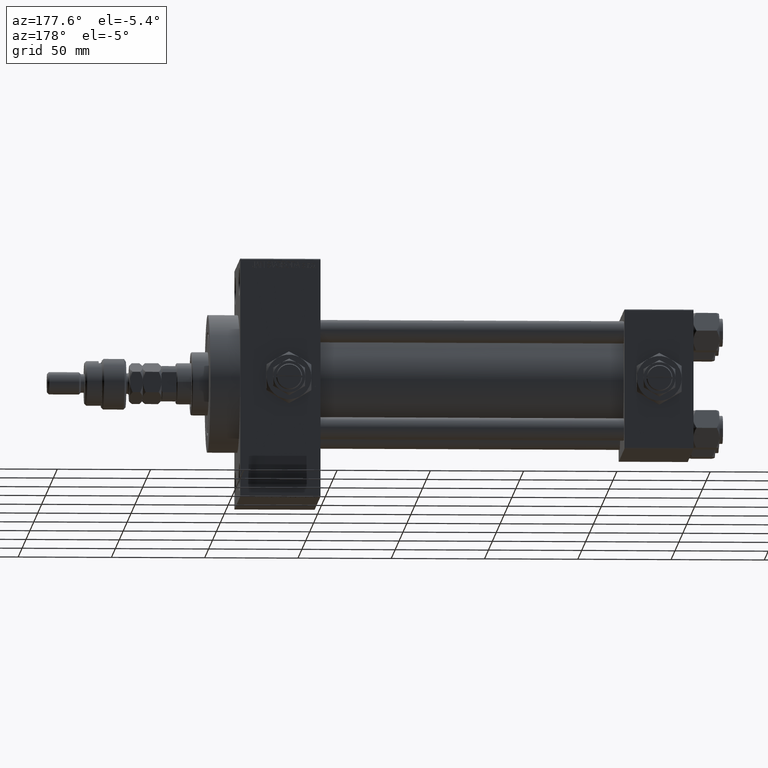
[diagram: clean part render]
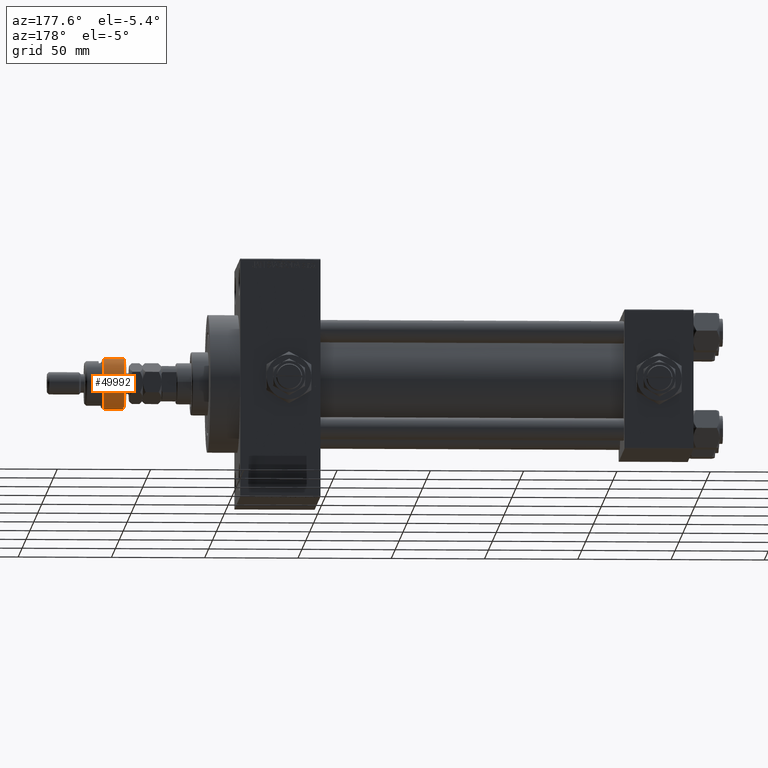
[diagram: same view with one face highlighted and labeled with its STEP entity id]
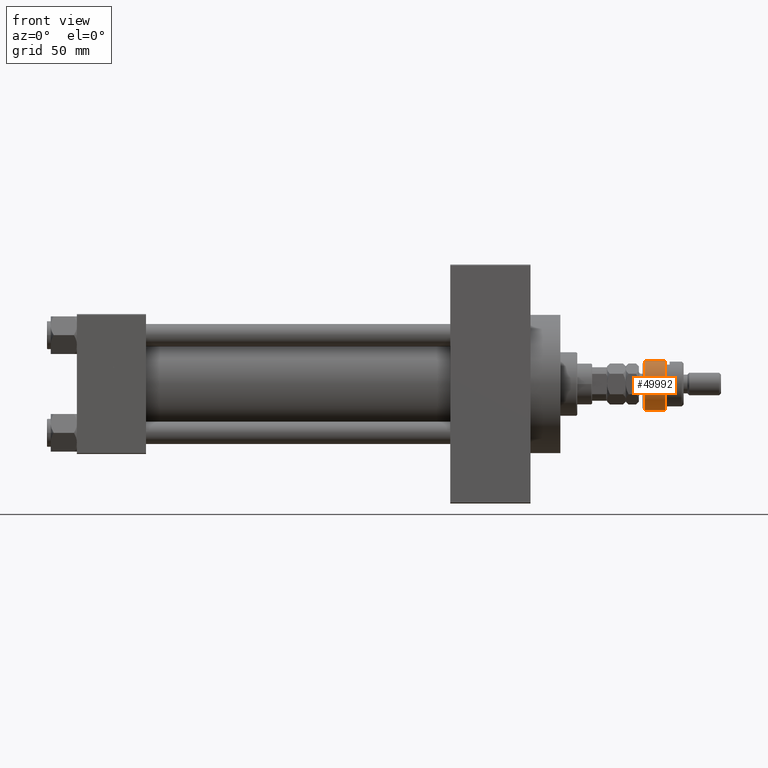
[diagram: same view with one face highlighted and labeled with its STEP entity id]
A machine part, auxiliary view. The second image highlights one B-rep face of the part: STEP entity #49992.
A second angle (front view) of the same face is appended — the face is thin or edge-on in the first view.
In plain terms, the highlighted cylindrical surface (edge-blend (fillet) strip) has radius 14 mm, axis along (-1, -0, 0).
Its self-contained STEP definition (entity closure, byte-faithful):
#356 = ORIENTED_EDGE ( 'NONE', *, *, #7010, .T. ) ;
#536 = EDGE_CURVE ( 'NONE', #14144, #27262, #51732, .T. ) ;
#3102 = EDGE_CURVE ( 'NONE', #32166, #40225, #21530, .T. ) ;
#3386 = CARTESIAN_POINT ( 'NONE',  ( 0.000000000000000000, 0.000000000000000000, 1.000000000000018208 ) ) ;
#3675 = EDGE_CURVE ( 'NONE', #7626, #14144, #35916, .T. ) ;
#4317 = DIRECTION ( 'NONE',  ( -0.000000000000000000, -0.000000000000000000, 1.000000000000000000 ) ) ;
#6844 = DIRECTION ( 'NONE',  ( -0.000000000000000000, -0.000000000000000000, 1.000000000000000000 ) ) ;
#7010 = EDGE_CURVE ( 'NONE', #27262, #32166, #11567, .T. ) ;
#7626 = VERTEX_POINT ( 'NONE', #35823 ) ;
#9298 = VECTOR ( 'NONE', #34826, 1000.000000000000000 ) ;
#9599 = CARTESIAN_POINT ( 'NONE',  ( 0.000000000000000000, 0.000000000000000000, 13.00000000000000000 ) ) ;
#10541 = AXIS2_PLACEMENT_3D ( 'NONE', #3386, #6844, #46776 ) ;
#11567 = CIRCLE ( 'NONE', #24234, 14.00000000000000000 ) ;
#12064 = CARTESIAN_POINT ( 'NONE',  ( 14.00000000000000000, 0.000000000000000000, 1.000000000000018208 ) ) ;
#12260 = CARTESIAN_POINT ( 'NONE',  ( 0.000000000000000000, 0.000000000000000000, 1.000000000000018208 ) ) ;
#14031 = CARTESIAN_POINT ( 'NONE',  ( -12.64911064067351809, -5.999999999999999112, 12.00000000000002842 ) ) ;
#14144 = VERTEX_POINT ( 'NONE', #14031 ) ;
#14864 = CYLINDRICAL_SURFACE ( 'NONE', #41557, 14.00000000000000000 ) ;
#15501 = CARTESIAN_POINT ( 'NONE',  ( -12.64911064067351809, -5.999999999999999112, 14.50000000000000000 ) ) ;
#16235 = EDGE_LOOP ( 'NONE', ( #33910, #32303, #41014, #356, #31425 ) ) ;
#16957 = EDGE_CURVE ( 'NONE', #7626, #40225, #39507, .T. ) ;
#21295 = CARTESIAN_POINT ( 'NONE',  ( 0.000000000000000000, 0.000000000000000000, 12.00000000000002842 ) ) ;
#21530 = CIRCLE ( 'NONE', #10541, 14.00000000000000000 ) ;
#22817 = FACE_OUTER_BOUND ( 'NONE', #16235, .T. ) ;
#23161 = CARTESIAN_POINT ( 'NONE',  ( -12.64911064067351809, -5.999999999999999112, 1.000000000000021760 ) ) ;
#24234 = AXIS2_PLACEMENT_3D ( 'NONE', #12260, #4317, #24692 ) ;
#24692 = DIRECTION ( 'NONE',  ( 1.000000000000000000, 0.000000000000000000, 0.000000000000000000 ) ) ;
#25733 = DIRECTION ( 'NONE',  ( -0.000000000000000000, -0.000000000000000000, -1.000000000000000000 ) ) ;
#27262 = VERTEX_POINT ( 'NONE', #23161 ) ;
#31425 = ORIENTED_EDGE ( 'NONE', *, *, #3102, .T. ) ;
#32166 = VERTEX_POINT ( 'NONE', #12064 ) ;
#32303 = ORIENTED_EDGE ( 'NONE', *, *, #3675, .T. ) ;
#33910 = ORIENTED_EDGE ( 'NONE', *, *, #16957, .F. ) ;
#34826 = DIRECTION ( 'NONE',  ( -0.000000000000000000, -0.000000000000000000, -1.000000000000000000 ) ) ;
#35823 = CARTESIAN_POINT ( 'NONE',  ( -12.64911064067351809, 6.000000000000000000, 12.00000000000002842 ) ) ;
#35916 = CIRCLE ( 'NONE', #36805, 14.00000000000000000 ) ;
#36805 = AXIS2_PLACEMENT_3D ( 'NONE', #21295, #37670, #45353 ) ;
#37670 = DIRECTION ( 'NONE',  ( 0.000000000000000000, 0.000000000000000000, -1.000000000000000000 ) ) ;
#38732 = DIRECTION ( 'NONE',  ( -0.000000000000000000, -0.000000000000000000, -1.000000000000000000 ) ) ;
#39507 = LINE ( 'NONE', #42975, #43967 ) ;
#40225 = VERTEX_POINT ( 'NONE', #45293 ) ;
#41014 = ORIENTED_EDGE ( 'NONE', *, *, #536, .T. ) ;
#41557 = AXIS2_PLACEMENT_3D ( 'NONE', #9599, #25733, #42120 ) ;
#42120 = DIRECTION ( 'NONE',  ( -1.000000000000000000, 0.000000000000000000, 0.000000000000000000 ) ) ;
#42975 = CARTESIAN_POINT ( 'NONE',  ( -12.64911064067351809, 6.000000000000000000, 14.50000000000000000 ) ) ;
#43967 = VECTOR ( 'NONE', #38732, 1000.000000000000000 ) ;
#45293 = CARTESIAN_POINT ( 'NONE',  ( -12.64911064067351809, 6.000000000000000000, 1.000000000000021760 ) ) ;
#45353 = DIRECTION ( 'NONE',  ( 1.000000000000000000, 0.000000000000000000, 0.000000000000000000 ) ) ;
#46776 = DIRECTION ( 'NONE',  ( 1.000000000000000000, 0.000000000000000000, 0.000000000000000000 ) ) ;
#49992 = ADVANCED_FACE ( 'NONE', ( #22817 ), #14864, .T. ) ;
#51732 = LINE ( 'NONE', #15501, #9298 ) ;